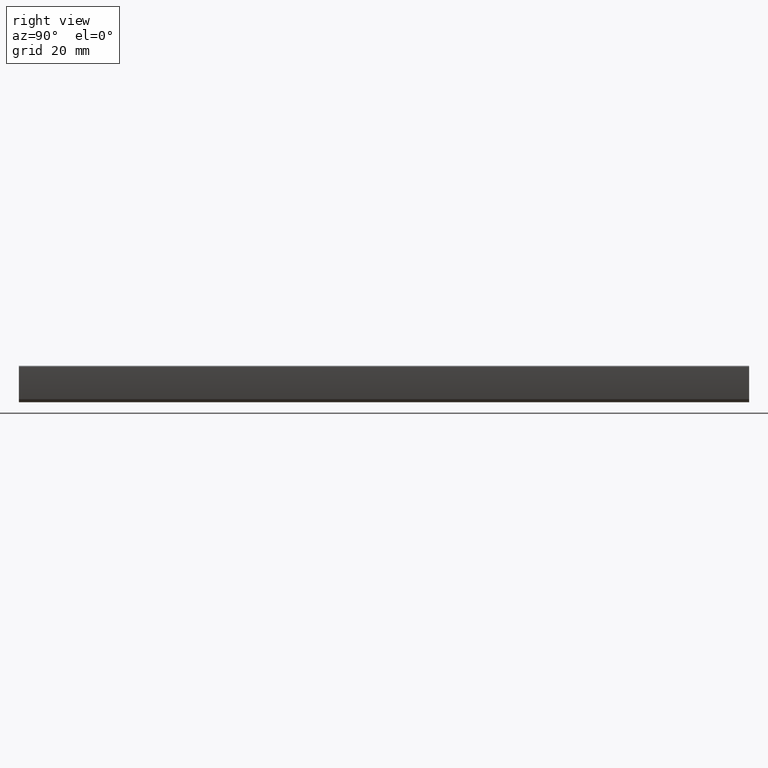
[diagram: clean part render]
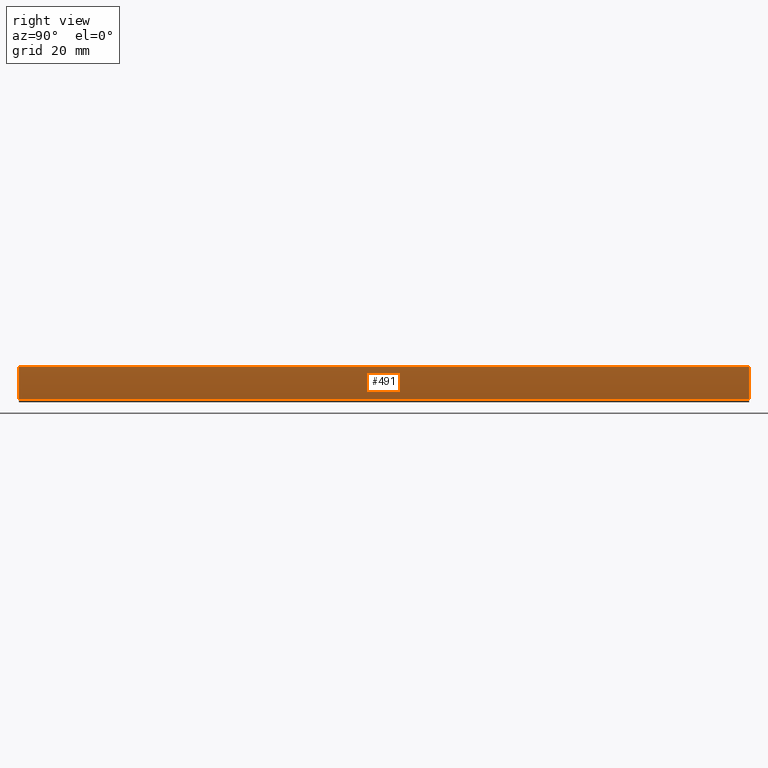
[diagram: same view with one face highlighted and labeled with its STEP entity id]
A machine part, right view. The second image highlights one B-rep face of the part: STEP entity #491.
In plain terms, the highlighted face is a freeform B-spline surface patch.
Its self-contained STEP definition (entity closure, byte-faithful):
#122=CARTESIAN_POINT('',(1.237973647619502,0.0,-7.900937391492809));
#123=VERTEX_POINT('',#122);
#137=CARTESIAN_POINT('',(2.998893122433645,0.0,0.874253129104146));
#138=VERTEX_POINT('',#137);
#139=CARTESIAN_POINT('',(1.237973647619502,0.0,-7.900937391492809));
#140=CARTESIAN_POINT('',(2.612403764088285,0.0,-3.612467279352602));
#141=CARTESIAN_POINT('',(2.998893122433656,0.0,0.874253129104148));
#149=(BOUNDED_CURVE()B_SPLINE_CURVE(2,(#139,#140,#141),.UNSPECIFIED.,.F.,.U.)CURVE()GEOMETRIC_REPRESENTATION_ITEM()QUASI_UNIFORM_CURVE()RATIONAL_B_SPLINE_CURVE((1.0,0.993722106049587,1.0))REPRESENTATION_ITEM(''));
#150=EDGE_CURVE('',#123,#138,#149,.T.);
#242=CARTESIAN_POINT('',(2.998893122433645,200.0,0.874253129104146));
#243=VERTEX_POINT('',#242);
#255=CARTESIAN_POINT('',(1.237973647619502,200.0,-7.900937391492809));
#256=VERTEX_POINT('',#255);
#257=CARTESIAN_POINT('',(1.237973647619441,200.0,-7.900937391492803));
#258=CARTESIAN_POINT('',(2.612403764088285,200.0,-3.612467279352602));
#259=CARTESIAN_POINT('',(2.998893122433656,200.0,0.874253129104148));
#267=(BOUNDED_CURVE()B_SPLINE_CURVE(2,(#257,#258,#259),.UNSPECIFIED.,.F.,.U.)CURVE()GEOMETRIC_REPRESENTATION_ITEM()QUASI_UNIFORM_CURVE()RATIONAL_B_SPLINE_CURVE((1.0,0.993722106049587,1.0))REPRESENTATION_ITEM(''));
#268=EDGE_CURVE('',#256,#243,#267,.T.);
#457=CARTESIAN_POINT('',(2.998893122433645,200.0,0.874253129104146));
#458=CARTESIAN_POINT('',(2.998893122433645,0.0,0.874253129104146));
#459=QUASI_UNIFORM_CURVE('',1,(#457,#458),.UNSPECIFIED.,.F.,.U.);
#460=EDGE_CURVE('',#243,#138,#459,.T.);
#467=CARTESIAN_POINT('',(3.034711564470118,204.999999999999970,1.319071660765626));
#468=CARTESIAN_POINT('',(3.034711564470118,-5.125000000000000,1.319071660765626));
#469=CARTESIAN_POINT('',(2.664448618864371,205.0,-3.623583277913389));
#470=CARTESIAN_POINT('',(2.664448618864371,-5.125000000000002,-3.623583277913389));
#471=CARTESIAN_POINT('',(1.098992878769032,204.999999999999970,-8.326378278499664));
#472=CARTESIAN_POINT('',(1.098992878769032,-5.125000000000000,-8.326378278499664));
#480=(BOUNDED_SURFACE()B_SPLINE_SURFACE(1,2,((#467,#469,#471),(#468,#470,#472)),.UNSPECIFIED.,.F.,.F.,.U.)B_SPLINE_SURFACE_WITH_KNOTS((2,2),(3,3),(0.0,210.125000000000000),(0.0,9.875239749481306),.UNSPECIFIED.)GEOMETRIC_REPRESENTATION_ITEM()RATIONAL_B_SPLINE_SURFACE(((0.998609512048968,0.989512599437258,0.995553457017018),(0.998609512048968,0.989512599437258,0.995553457017018)))REPRESENTATION_ITEM('')SURFACE());
#481=ORIENTED_EDGE('',*,*,#150,.F.);
#482=CARTESIAN_POINT('',(1.237973647619502,200.0,-7.900937391492809));
#483=CARTESIAN_POINT('',(1.237973647619502,0.0,-7.900937391492809));
#484=QUASI_UNIFORM_CURVE('',1,(#482,#483),.UNSPECIFIED.,.F.,.U.);
#485=EDGE_CURVE('',#256,#123,#484,.T.);
#486=ORIENTED_EDGE('',*,*,#485,.F.);
#487=ORIENTED_EDGE('',*,*,#268,.T.);
#488=ORIENTED_EDGE('',*,*,#460,.T.);
#489=EDGE_LOOP('',(#481,#486,#487,#488));
#490=FACE_OUTER_BOUND('',#489,.T.);
#491=ADVANCED_FACE('',(#490),#480,.T.);